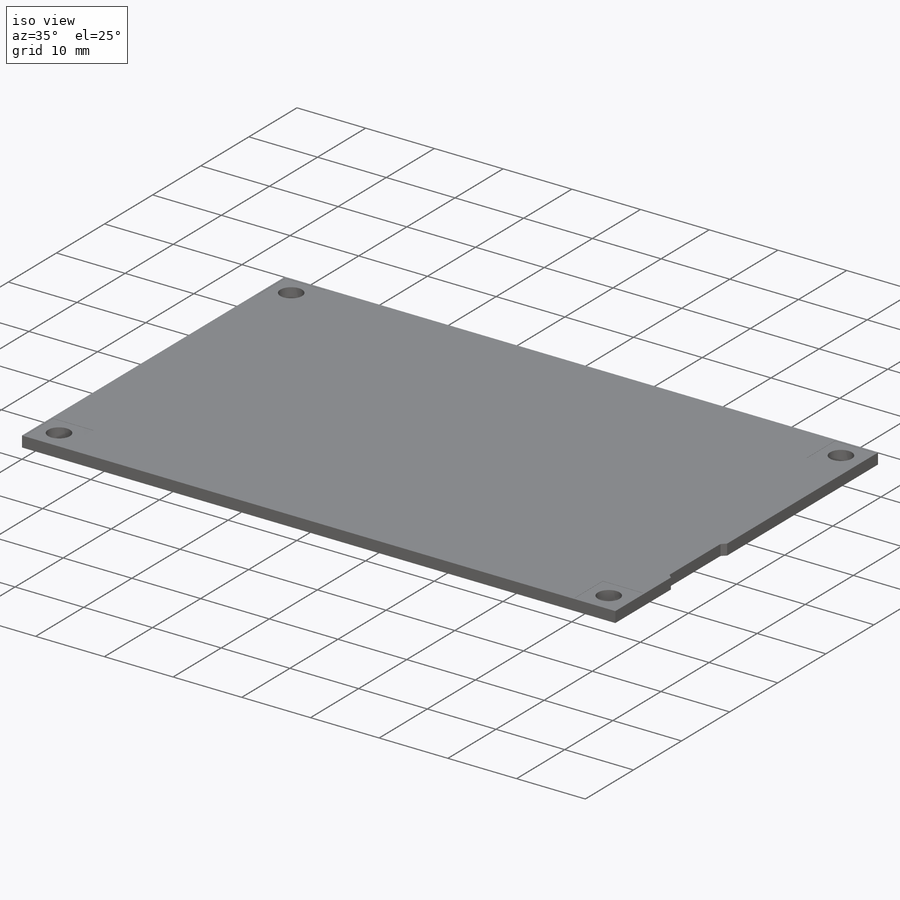
[diagram: iso view]
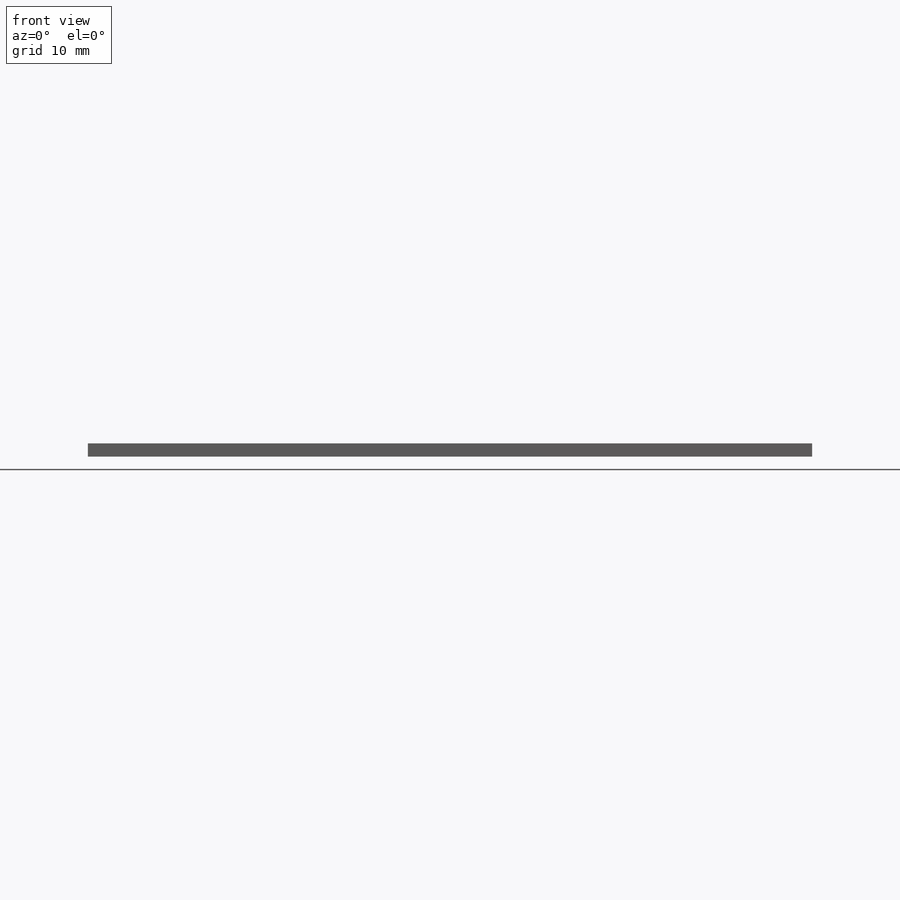
[diagram: front view]
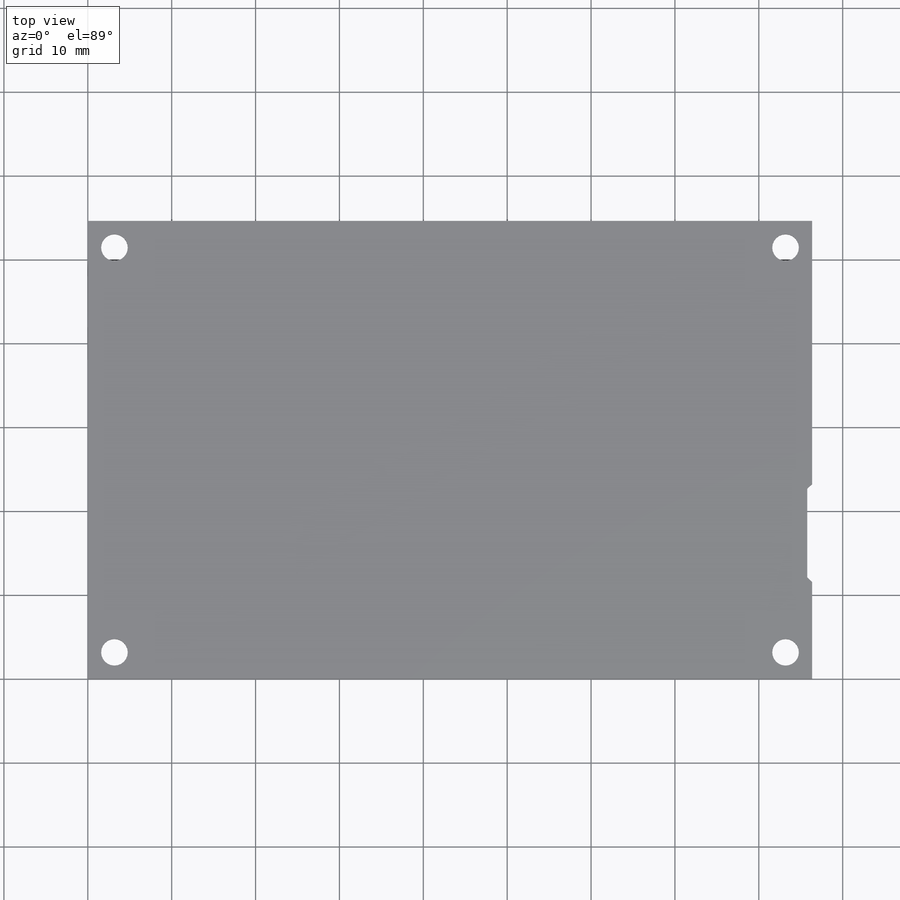
[diagram: top view]
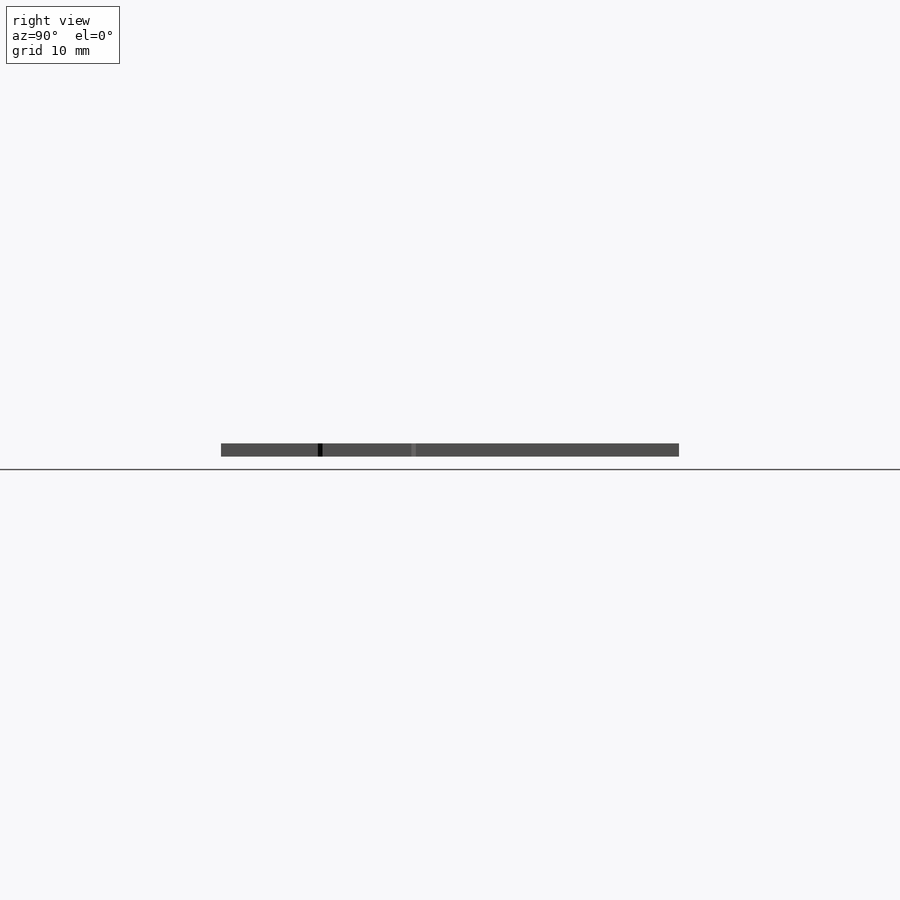
[diagram: right view]
SOLIDWORKS PART (.sldprt)
format: sldprt  version: not decoded by parser v0  size: 207,872 bytes
history: native  units: mm
features: sketch x3, cut_extrude x2, material x1, extrude x1 (+13 scaffold rows collapsed)
feature tree (20):
  scaffold x13  (default folders/planes/origin — collapsed)
  material  "Material <not specified>"
  sketch  "Sketch1"  dims[D7=3.175mm D1=86.36mm D2=54.61mm D3=~0.585978mm D4=11.557mm D5=~10.599928mm D6=31.369mm D8=3.175mm D9=3.175mm D10=3.175mm D11=3.175mm]
  extrude  "Boss-Extrude1"  Depth=1.5748mm
  sketch  "Sketch2"  dims[D1=5.842mm]
  cut_extrude  "Cut-Extrude1"  Depth=0.0254mm
  cut_extrude  "Cut-Extrude2"  [1 undecoded]
  sketch  "Sketch2<2>"  dims[D1=0.0254mm]
decode coverage: 5 of 6 modeling features carry decoded parameters
note: ~ marks probable driven/reference dimensions
note: 1 parameter value undecoded
note: suppression state not decoded; provenance and decode notes live in map.json
